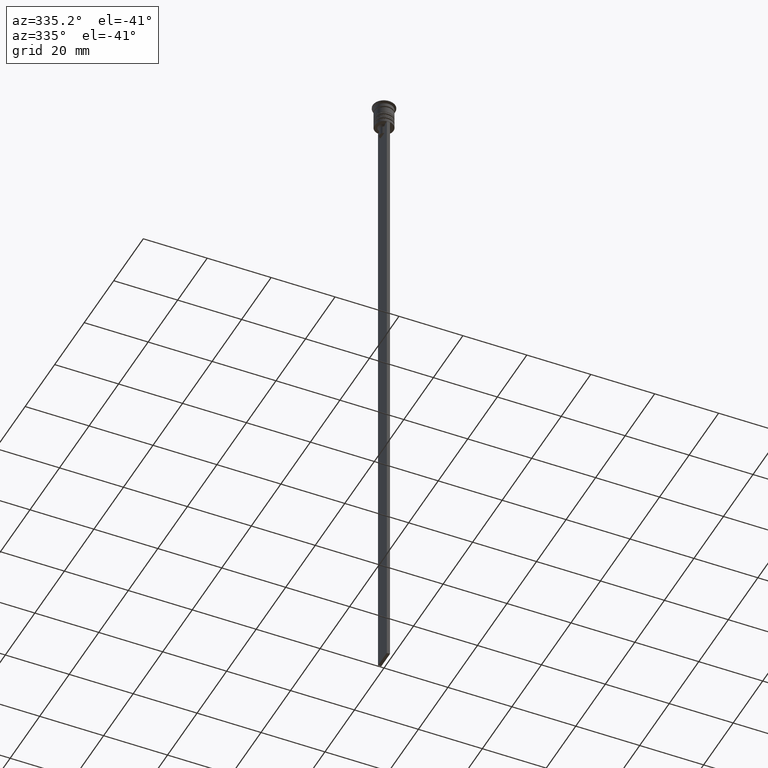
[diagram: clean part render]
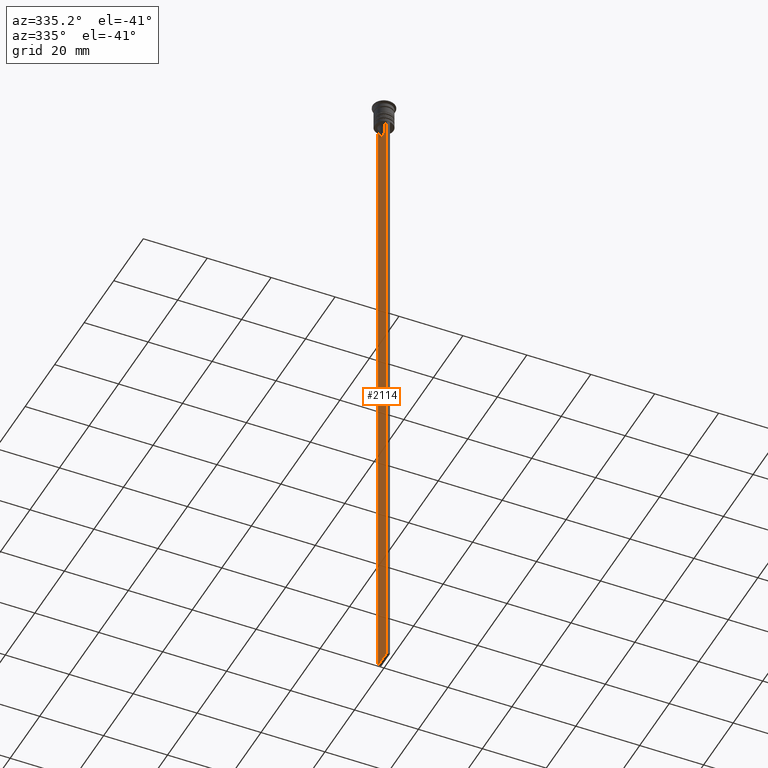
[diagram: same view with one face highlighted and labeled with its STEP entity id]
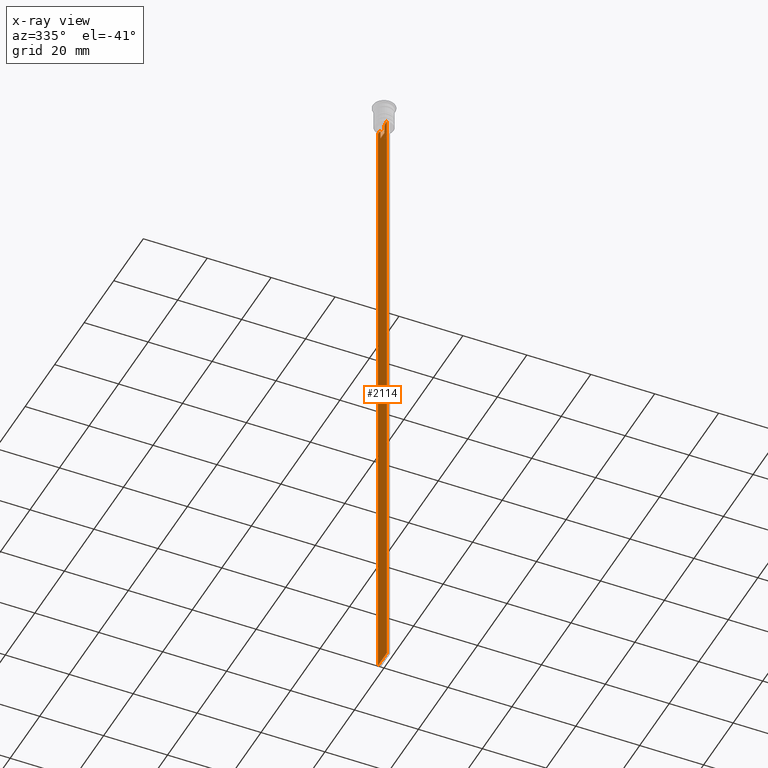
[diagram: x-ray of the same camera — body ghosted, the highlighted face saturated]
A machine part, auxiliary view. The second image highlights one B-rep face of the part: STEP entity #2114.
The next image is the same camera in x-ray: the body ghosted, the highlighted face saturated — about 0% of this face is hidden behind the body in this view.
In plain terms, the highlighted planar face has unit normal (-1, 0, 0).
Its self-contained STEP definition (entity closure, byte-faithful):
#45 = VERTEX_POINT ( 'NONE', #2291 ) ;
#47 = EDGE_CURVE ( 'NONE', #1540, #1560, #1208, .T. ) ;
#53 = VECTOR ( 'NONE', #1594, 1000.000000000000000 ) ;
#97 = DIRECTION ( 'NONE',  ( 0.000000000000000000, -1.000000000000000000, 0.000000000000000000 ) ) ;
#103 = CARTESIAN_POINT ( 'NONE',  ( -0.5000000000000001110, 1.307669683062199217, -8.000000000000000000 ) ) ;
#114 = CARTESIAN_POINT ( 'NONE',  ( -0.5000000000000001110, -1.659011726860414093, -7.667884880598472286 ) ) ;
#148 = CARTESIAN_POINT ( 'NONE',  ( -0.5000000000000001110, 1.307669683062199217, 0.000000000000000000 ) ) ;
#160 = VECTOR ( 'NONE', #2066, 1000.000000000000000 ) ;
#181 = ORIENTED_EDGE ( 'NONE', *, *, #1656, .F. ) ;
#185 = EDGE_CURVE ( 'NONE', #45, #634, #1298, .T. ) ;
#194 = DIRECTION ( 'NONE',  ( 0.000000000000000000, -1.000000000000000000, 0.000000000000000000 ) ) ;
#236 = VERTEX_POINT ( 'NONE', #1989 ) ;
#240 = VECTOR ( 'NONE', #97, 1000.000000000000000 ) ;
#262 = EDGE_CURVE ( 'NONE', #1972, #1807, #1725, .T. ) ;
#278 = EDGE_LOOP ( 'NONE', ( #2052, #714, #1021, #2041, #596, #1300, #181, #1698, #794, #631, #382, #995 ) ) ;
#322 = EDGE_CURVE ( 'NONE', #2257, #608, #975, .T. ) ;
#382 = ORIENTED_EDGE ( 'NONE', *, *, #389, .F. ) ;
#389 = EDGE_CURVE ( 'NONE', #236, #1972, #1938, .T. ) ;
#391 = VECTOR ( 'NONE', #1916, 1000.000000000000000 ) ;
#397 = CARTESIAN_POINT ( 'NONE',  ( -0.5000000000000001110, 3.000000000000000000, -207.5000000000000284 ) ) ;
#459 = DIRECTION ( 'NONE',  ( -1.000000000000000000, 0.000000000000000000, 0.000000000000000000 ) ) ;
#472 = CARTESIAN_POINT ( 'NONE',  ( -0.5000000000000001110, 2.856571371417139904, -7.500000000000000000 ) ) ;
#490 = LINE ( 'NONE', #148, #2272 ) ;
#513 = EDGE_CURVE ( 'NONE', #1560, #236, #490, .T. ) ;
#518 = CARTESIAN_POINT ( 'NONE',  ( -0.5000000000000001110, 1.399999999999997691, -10.49999999999999822 ) ) ;
#538 = CARTESIAN_POINT ( 'NONE',  ( -0.5000000000000001110, -2.856571371417139904, -7.500000000000000000 ) ) ;
#544 = CARTESIAN_POINT ( 'NONE',  ( -0.5000000000000001110, -1.307669683062199217, -10.49999999999999822 ) ) ;
#596 = ORIENTED_EDGE ( 'NONE', *, *, #185, .F. ) ;
#608 = VERTEX_POINT ( 'NONE', #538 ) ;
#631 = ORIENTED_EDGE ( 'NONE', *, *, #262, .F. ) ;
#634 = VERTEX_POINT ( 'NONE', #397 ) ;
#651 = LINE ( 'NONE', #2105, #391 ) ;
#653 = LINE ( 'NONE', #1361, #2058 ) ;
#681 = CARTESIAN_POINT ( 'NONE',  ( -0.5000000000000001110, -1.484307477388859153, -7.835011508197190722 ) ) ;
#714 = ORIENTED_EDGE ( 'NONE', *, *, #1161, .F. ) ;
#794 = ORIENTED_EDGE ( 'NONE', *, *, #1376, .F. ) ;
#799 = VECTOR ( 'NONE', #1084, 1000.000000000000000 ) ;
#826 = CARTESIAN_POINT ( 'NONE',  ( -0.5000000000000001110, -3.000000000000000000, -1.417237469701779329 ) ) ;
#852 = DIRECTION ( 'NONE',  ( 0.000000000000000000, 0.000000000000000000, -1.000000000000000000 ) ) ;
#975 = LINE ( 'NONE', #1344, #240 ) ;
#991 = CARTESIAN_POINT ( 'NONE',  ( -0.5000000000000001110, -3.000000000000000000, -7.500000000000000000 ) ) ;
#995 = ORIENTED_EDGE ( 'NONE', *, *, #513, .F. ) ;
#1006 = PLANE ( 'NONE',  #1897 ) ;
#1021 = ORIENTED_EDGE ( 'NONE', *, *, #1379, .F. ) ;
#1037 = CARTESIAN_POINT ( 'NONE',  ( -0.5000000000000001110, 1.307669683062199217, -8.000000000000000000 ) ) ;
#1084 = DIRECTION ( 'NONE',  ( 0.000000000000000000, 1.000000000000000000, 0.000000000000000000 ) ) ;
#1158 = DIRECTION ( 'NONE',  ( 0.000000000000000000, 0.000000000000000000, -1.000000000000000000 ) ) ;
#1161 = EDGE_CURVE ( 'NONE', #1861, #1540, #1426, .T. ) ;
#1208 = B_SPLINE_CURVE_WITH_KNOTS ( 'NONE', 3,
 ( #1597, #2329, #1765, #1037 ),
 .UNSPECIFIED., .F., .F.,
 ( 4, 4 ),
 ( 0.003278537493109840491, 0.004003794023484932504 ),
 .UNSPECIFIED. ) ;
#1215 = CARTESIAN_POINT ( 'NONE',  ( -0.5000000000000001110, -1.307669683062199217, -8.000000000000000000 ) ) ;
#1298 = LINE ( 'NONE', #1458, #799 ) ;
#1300 = ORIENTED_EDGE ( 'NONE', *, *, #1858, .F. ) ;
#1337 = VERTEX_POINT ( 'NONE', #1779 ) ;
#1344 = CARTESIAN_POINT ( 'NONE',  ( -0.5000000000000001110, -3.000000000000000000, -7.500000000000000000 ) ) ;
#1360 = VECTOR ( 'NONE', #194, 1000.000000000000000 ) ;
#1361 = CARTESIAN_POINT ( 'NONE',  ( -0.5000000000000001110, 3.000000000000000000, -1.417237469701779329 ) ) ;
#1374 = DIRECTION ( 'NONE',  ( 0.000000000000000000, 0.000000000000000000, 1.000000000000000000 ) ) ;
#1376 = EDGE_CURVE ( 'NONE', #1807, #2257, #1602, .T. ) ;
#1379 = EDGE_CURVE ( 'NONE', #1337, #1861, #651, .T. ) ;
#1385 = CARTESIAN_POINT ( 'NONE',  ( -0.5000000000000001110, -1.833030277982335532, -7.500000000000000000 ) ) ;
#1426 = LINE ( 'NONE', #1658, #1360 ) ;
#1458 = CARTESIAN_POINT ( 'NONE',  ( -0.5000000000000001110, -3.000000000000000000, -207.5000000000000284 ) ) ;
#1502 = LINE ( 'NONE', #1718, #1593 ) ;
#1540 = VERTEX_POINT ( 'NONE', #2084 ) ;
#1560 = VERTEX_POINT ( 'NONE', #103 ) ;
#1593 = VECTOR ( 'NONE', #2260, 1000.000000000000000 ) ;
#1594 = DIRECTION ( 'NONE',  ( 0.000000000000000000, -1.000000000000000000, 0.000000000000000000 ) ) ;
#1597 = CARTESIAN_POINT ( 'NONE',  ( -0.5000000000000001110, 1.833030277982335532, -7.500000000000000000 ) ) ;
#1602 = B_SPLINE_CURVE_WITH_KNOTS ( 'NONE', 3,
 ( #1941, #681, #114, #1385 ),
 .UNSPECIFIED., .F., .F.,
 ( 4, 4 ),
 ( 0.007225659348748070081, 0.007950554640278040958 ),
 .UNSPECIFIED. ) ;
#1634 = VECTOR ( 'NONE', #1689, 1000.000000000000000 ) ;
#1656 = EDGE_CURVE ( 'NONE', #608, #1717, #1872, .T. ) ;
#1658 = CARTESIAN_POINT ( 'NONE',  ( -0.5000000000000001110, -3.000000000000000000, -7.500000000000000000 ) ) ;
#1689 = DIRECTION ( 'NONE',  ( 0.000000000000000000, -1.000000000000000000, 0.000000000000000000 ) ) ;
#1694 = CARTESIAN_POINT ( 'NONE',  ( -0.5000000000000001110, -3.000000000000000000, -7.500000000000000000 ) ) ;
#1698 = ORIENTED_EDGE ( 'NONE', *, *, #322, .F. ) ;
#1714 = CARTESIAN_POINT ( 'NONE',  ( -0.5000000000000001110, -1.307669683062199217, 0.000000000000000000 ) ) ;
#1717 = VERTEX_POINT ( 'NONE', #1694 ) ;
#1718 = CARTESIAN_POINT ( 'NONE',  ( -0.5000000000000001110, -3.000000000000000000, -1.417237469701779329 ) ) ;
#1725 = LINE ( 'NONE', #1714, #160 ) ;
#1765 = CARTESIAN_POINT ( 'NONE',  ( -0.5000000000000001110, 1.484355510416485391, -7.834966642958598015 ) ) ;
#1779 = CARTESIAN_POINT ( 'NONE',  ( -0.5000000000000001110, 3.000000000000000000, -7.500000000000000000 ) ) ;
#1807 = VERTEX_POINT ( 'NONE', #1215 ) ;
#1858 = EDGE_CURVE ( 'NONE', #1717, #45, #1502, .T. ) ;
#1861 = VERTEX_POINT ( 'NONE', #472 ) ;
#1872 = LINE ( 'NONE', #991, #1634 ) ;
#1897 = AXIS2_PLACEMENT_3D ( 'NONE', #826, #459, #1374 ) ;
#1916 = DIRECTION ( 'NONE',  ( 0.000000000000000000, -1.000000000000000000, 0.000000000000000000 ) ) ;
#1938 = LINE ( 'NONE', #518, #53 ) ;
#1941 = CARTESIAN_POINT ( 'NONE',  ( -0.5000000000000001110, -1.307669683062199217, -8.000000000000000000 ) ) ;
#1972 = VERTEX_POINT ( 'NONE', #544 ) ;
#1989 = CARTESIAN_POINT ( 'NONE',  ( -0.5000000000000001110, 1.307669683062199217, -10.49999999999999822 ) ) ;
#2041 = ORIENTED_EDGE ( 'NONE', *, *, #2181, .T. ) ;
#2052 = ORIENTED_EDGE ( 'NONE', *, *, #47, .F. ) ;
#2058 = VECTOR ( 'NONE', #1158, 1000.000000000000000 ) ;
#2066 = DIRECTION ( 'NONE',  ( -0.000000000000000000, -0.000000000000000000, 1.000000000000000000 ) ) ;
#2084 = CARTESIAN_POINT ( 'NONE',  ( -0.5000000000000001110, 1.833030277982335532, -7.500000000000000000 ) ) ;
#2105 = CARTESIAN_POINT ( 'NONE',  ( -0.5000000000000001110, -3.000000000000000000, -7.500000000000000000 ) ) ;
#2106 = FACE_OUTER_BOUND ( 'NONE', #278, .T. ) ;
#2114 = ADVANCED_FACE ( 'NONE', ( #2106 ), #1006, .T. ) ;
#2181 = EDGE_CURVE ( 'NONE', #1337, #634, #653, .T. ) ;
#2257 = VERTEX_POINT ( 'NONE', #2331 ) ;
#2260 = DIRECTION ( 'NONE',  ( 0.000000000000000000, 0.000000000000000000, -1.000000000000000000 ) ) ;
#2272 = VECTOR ( 'NONE', #852, 1000.000000000000000 ) ;
#2291 = CARTESIAN_POINT ( 'NONE',  ( -0.5000000000000001110, -3.000000000000000000, -207.5000000000000284 ) ) ;
#2329 = CARTESIAN_POINT ( 'NONE',  ( -0.5000000000000001110, 1.659046061654642523, -7.667851756010361619 ) ) ;
#2331 = CARTESIAN_POINT ( 'NONE',  ( -0.5000000000000001110, -1.833030277982335532, -7.500000000000000000 ) ) ;